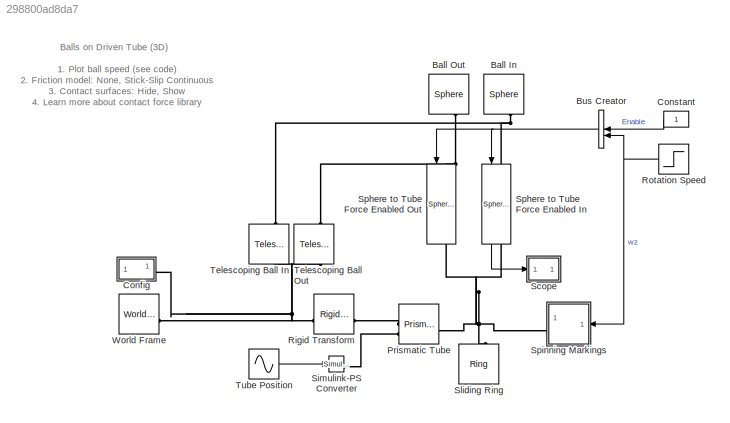
MODEL slx_298800ad8da7
KIND model
CONFIG AbsTol = 1e-5
CONFIG EnableMultiTasking = on
CONFIG FixedStep = auto
CONFIG MaxStep = 0.01
CONFIG MinStep = auto
CONFIG RelTol = 1e-4
CONFIG SampleTimeConstraint = Unconstrained
CONFIG SolverName = ode15s
CONFIG StartFcn = tic;
CONFIG StartTime = 0.0
CONFIG StopFcn = Elapsed_Sim_Time = toc;\ndisp(['Elapsed Sim Time = ' num2str(Elapsed_Sim_Time)]);\n
CONFIG StopTime = 10
WORKSPACE source: MATLAB code (in-file)
WORKSPACE code: tube.outer_rad = 2.3;
WORKSPACE code: tube.inner_rad = 1.5;
WORKSPACE code: tube.length = 8;
WORKSPACE code: ball.rad = 1;
BLOCK [Reference] Ball In  REF=Parts_Lib/Sphere
  NameLocation = right
  SourceBlock = Parts_Lib/Sphere
  SourceType = Sphere with Markings
  Tag = CustomStyle
BLOCK [Reference] Ball Out  REF=Parts_Lib/Sphere
  NameLocation = left
  SourceBlock = Parts_Lib/Sphere
  SourceType = Sphere with Markings
  Tag = CustomStyle
BLOCK [BusCreator] Bus Creator
  DisplayOption = bar
  InheritFromInputs = on
  Inputs = 2
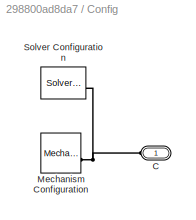
BLOCK [SubSystem] Config
BLOCK [PMIOPort] Config/C
  Side = Left
BLOCK [Reference] Config/Mechanism Configuration  REF=sm_lib/Utilities/Mechanism
Configuration
  SourceBlock = sm_lib/Utilities/Mechanism\nConfiguration
  SourceType = Mechanism\nConfiguration
BLOCK [Reference] Config/Solver Configuration  REF=nesl_utility/Solver
Configuration
  SourceBlock = nesl_utility/Solver\nConfiguration
  SourceType = Solver\nConfiguration
BLOCK [Constant] Constant
BLOCK [Reference] Prismatic Tube  REF=sm_lib/Joints/Prismatic
Joint
  SourceBlock = sm_lib/Joints/Prismatic\nJoint
  SourceType = Prismatic\nJoint
BLOCK [Reference] Rigid Transform  REF=sm_lib/Frames and
Transforms/Rigid
Transform
  SourceBlock = sm_lib/Frames and\nTransforms/Rigid\nTransform
  SourceType = Rigid\nTransform
BLOCK [Step] Rotation Speed
  SampleTime = 0
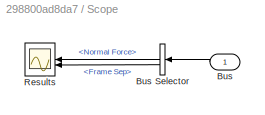
BLOCK [SubSystem] Scope
BLOCK [Inport] Scope/Bus
BLOCK [BusSelector] Scope/Bus Selector
  NameLocation = top
  OutputSignals = Normal Force,Frame Sep
BLOCK [Scope] Scope/Results
  Floating = off
  NameLocation = top
  NumInputPorts = 2
  ScopeSpecificationString = Simulink.scopes.TimeScopeBlockCfg('CurrentConfiguration', extmgr.ConfigurationSet(extmgr.Configuration('Core','General UI',true,'FigureColor',[0.501960784313725 0.501960784313725 0.501960784313725]),extmgr.Configuration('Core','Source UI',true),extmgr.Configuration('Sources','WiredSimulink',true,'DataLoggingVariableName','ScopeData1','DataLoggingSaveFormat','StructureWithTime','DataLoggingDecimati...<+3801ch>
  Tag = PublishScope
BLOCK [Reference] Simulink-PS Converter  REF=nesl_utility/Simulink-PS
Converter
  SourceBlock = nesl_utility/Simulink-PS\nConverter
  SourceType = Simulink-PS\nConverter
BLOCK [Reference] Sliding Ring  REF=Parts_Lib/Ring
  NameLocation = right
  SourceBlock = Parts_Lib/Ring
  SourceType = Solid Cylinder with Markings
  Tag = CustomStyle
BLOCK [Reference] Sphere to Tube Force Enabled In  REF=Contact_Forces_Lib/3D/Sphere to Tube Force
Enabled
  NameLocation = right
  SourceBlock = Contact_Forces_Lib/3D/Sphere to Tube Force\nEnabled
  SourceProductName = Simscape Multibody Contact Forces Library
  SourceType = Sphere to Tube Force
BLOCK [Reference] Sphere to Tube Force Enabled Out  REF=Contact_Forces_Lib/3D/Sphere to Tube Force
Enabled
  NameLocation = left
  SourceBlock = Contact_Forces_Lib/3D/Sphere to Tube Force\nEnabled
  SourceProductName = Simscape Multibody Contact Forces Library
  SourceType = Sphere to Tube Force
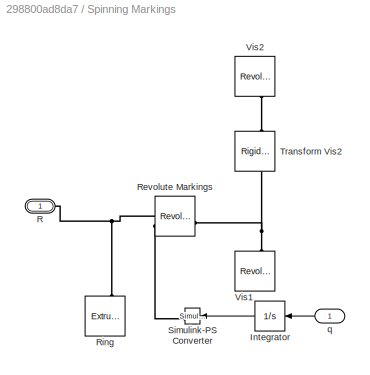
BLOCK [SubSystem] Spinning Markings
  Tag = CustomStyle
BLOCK [Integrator] Spinning Markings/Integrator
BLOCK [PMIOPort] Spinning Markings/R
  Side = Right
BLOCK [Reference] Spinning Markings/Revolute Markings  REF=sm_lib/Joints/Revolute Joint
  SourceBlock = sm_lib/Joints/Revolute Joint
  SourceType = Revolute Joint
BLOCK [Reference] Spinning Markings/Ring  REF=sm_lib/Body Elements/Extruded Solid
  NameLocation = left
  SourceBlock = sm_lib/Body Elements/Extruded Solid
  SourceType = Extruded Solid
BLOCK [Reference] Spinning Markings/Simulink-PS Converter  REF=nesl_utility/Simulink-PS
Converter
  SourceBlock = nesl_utility/Simulink-PS\nConverter
  SourceType = Simulink-PS\nConverter
BLOCK [Reference] Spinning Markings/Transform Vis2  REF=sm_lib/Frames and
Transforms/Rigid
Transform
  NameLocation = left
  SourceBlock = sm_lib/Frames and\nTransforms/Rigid\nTransform
  SourceType = Rigid\nTransform
BLOCK [Reference] Spinning Markings/Vis1  REF=sm_lib/Body Elements/Revolved Solid
  NameLocation = right
  SourceBlock = sm_lib/Body Elements/Revolved Solid
  SourceType = Revolved Solid
BLOCK [Reference] Spinning Markings/Vis2  REF=sm_lib/Body Elements/Revolved Solid
  NameLocation = left
  SourceBlock = sm_lib/Body Elements/Revolved Solid
  SourceType = Revolved Solid
BLOCK [Inport] Spinning Markings/q
BLOCK [Reference] Telescoping Ball In  REF=sm_lib/Joints/Telescoping
Joint
  NameLocation = left
  SourceBlock = sm_lib/Joints/Telescoping\nJoint
  SourceType = Telescoping\nJoint
BLOCK [Reference] Telescoping Ball Out  REF=sm_lib/Joints/Telescoping
Joint
  NameLocation = right
  SourceBlock = sm_lib/Joints/Telescoping\nJoint
  SourceType = Telescoping\nJoint
BLOCK [Sin] Tube Position
  Amplitude = 0.5
  Frequency = pi
  SampleTime = 0
BLOCK [Reference] World Frame  REF=sm_lib/Frames and
Transforms/World Frame
  SourceBlock = sm_lib/Frames and\nTransforms/World Frame
  SourceType = World Frame
ANNOTATION (root): 1. Plot ball speed ( see code ) 2. Friction model: None , Stick-Slip Continuous 3. Contact surfaces: Hide , Show 4. Learn more about contact force library
ANNOTATION (root): Balls on Driven Tube (3D)
NET Bus Creator:1 -> Sphere to Tube Force Enabled In:1, Sphere to Tube Force Enabled Out:1
LINE Constant:1 -> Bus Creator:1
NET Rotation Speed:1 -> Bus Creator:2, Spinning Markings:1
LINE Scope/Bus Selector:1 -> Scope/Results:1
LINE Scope/Bus Selector:2 -> Scope/Results:2
LINE Scope/Bus:1 -> Scope/Bus Selector:1
LINE Sphere to Tube Force Enabled In:1 -> Scope:1
LINE Tube Position:1 -> Simulink-PS Converter:1
PNET net1: Ball In:LConn1 -- Sphere to Tube Force Enabled In:LConn1 -- Telescoping Ball In:LConn1
PNET net2: Ball Out:LConn1 -- Sphere to Tube Force Enabled Out:LConn1 -- Telescoping Ball Out:LConn1
PNET net3: Config/C:RConn1 -- Config/Mechanism Configuration:RConn1 -- Config/Solver Configuration:RConn1
PNET net4: Config:LConn1 -- Rigid Transform:LConn1 -- Telescoping Ball In:RConn1 -- Telescoping Ball Out:RConn1 -- World Frame:RConn1
PLINE Prismatic Tube:LConn1 -- Rigid Transform:RConn1
PLINE Prismatic Tube:LConn2 -- Simulink-PS Converter:RConn1
PNET net5: Prismatic Tube:RConn1 -- Sliding Ring:LConn1 -- Sphere to Tube Force Enabled In:RConn1 -- Sphere to Tube Force Enabled Out:RConn1 -- Spinning Markings:RConn1
note: NET lines group one-source signal fan-out (src -> all destinations, sorted); 1:1 wires keep LINE; PNET lines group multi-terminal physical nets as a canonical sorted terminal list (undirected conserving connections); 2-terminal nets keep the pairwise PLINE form
